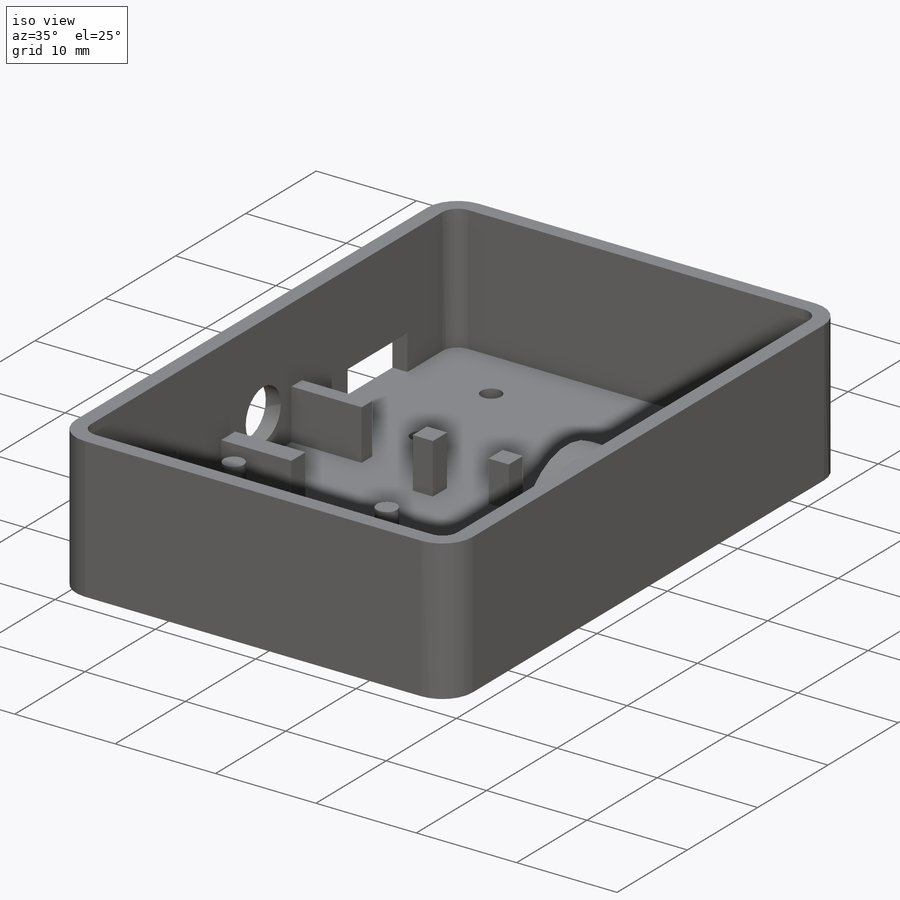
[diagram: iso view]
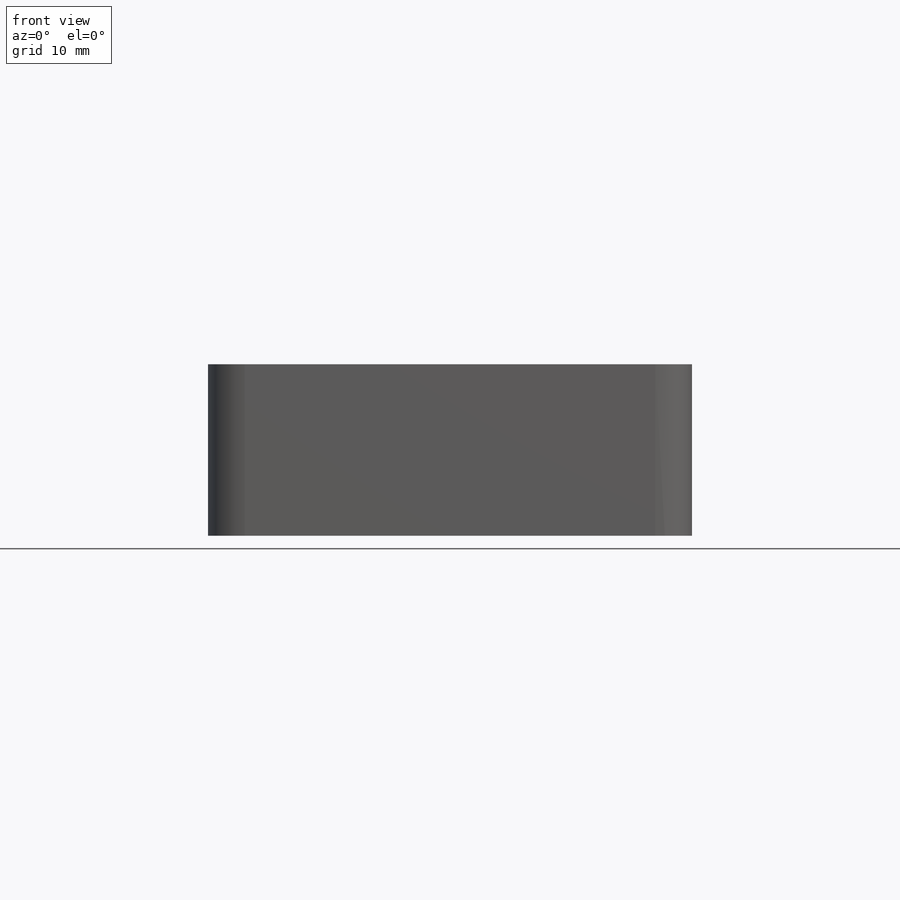
[diagram: front view]
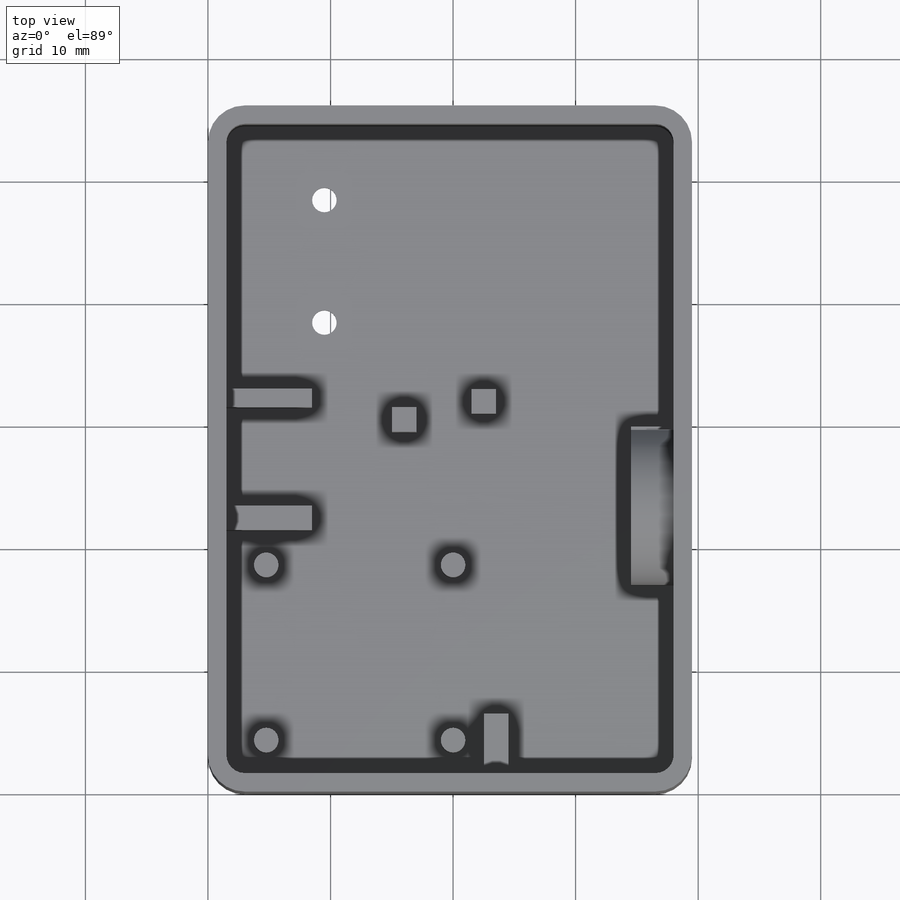
[diagram: top view]
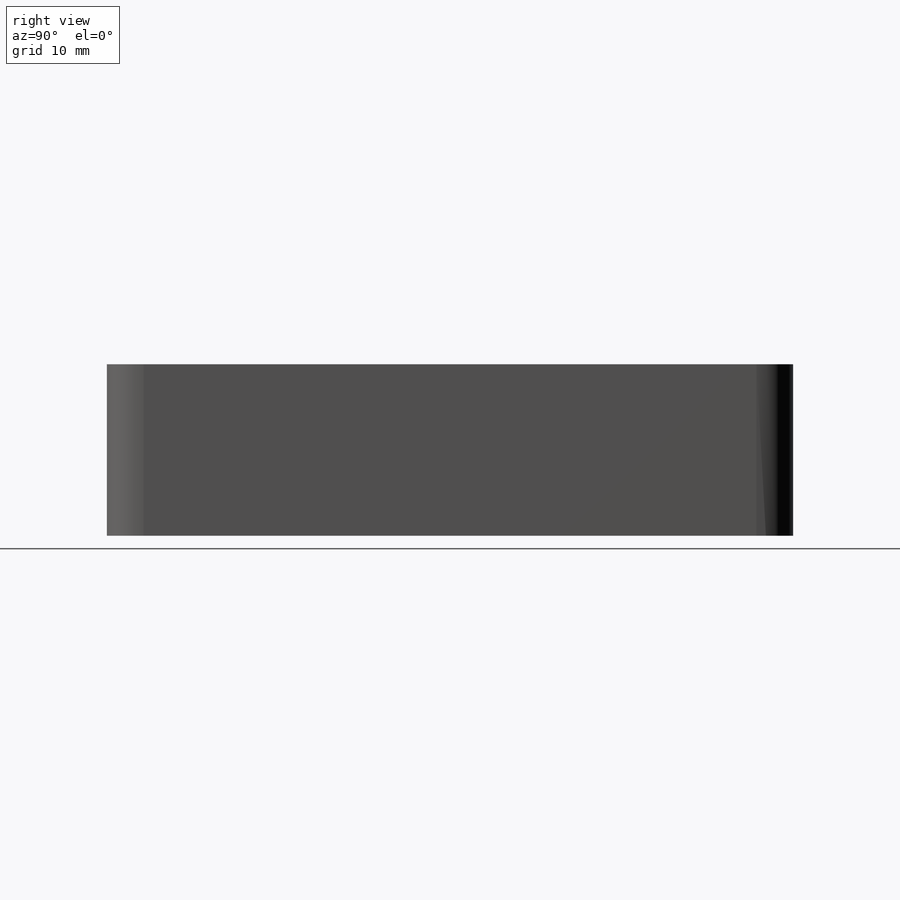
[diagram: right view]
SOLIDWORKS PART (.sldprt)
format: sldprt  version: not decoded by parser v0  size: 570,880 bytes
history: native  units: mm
features: sketch x18, extrude x10, cut_extrude x8, material x1, fillet x1, shell x1 (+13 scaffold rows collapsed)
feature tree (52):
  scaffold x13  (default folders/planes/origin — collapsed)
  material  "Material <not specified>"
  sketch  "Sketch2"  dims[D1=56.0mm D2=39.5mm]
  extrude  "Boss-Extrude1"  Depth=14mm
  fillet  "Fillet1"  Radius=3mm
  shell  "Shell1"  Thickness=1.5mm
  sketch  "Sketch3"  dims[D1=7.0mm D2=2.0mm D3=0.0mm D4=20.0mm D5=5.0mm D6=2.0mm D7=0.0mm D8=21.0mm]
  extrude  "Boss-Extrude3"  Depth=4mm
  sketch  "Sketch4"  dims[D1=2.0mm D2=2.0mm D3=20.0mm D4=21.5mm]
  extrude  "Boss-Extrude4"  Depth=4.052221mm
  sketch  "Sketch6"  dims[D1=8.0mm D2=3.5mm D3=2.0mm D4=6.0mm]
  cut_extrude  "Cut-Extrude1"  [1 undecoded]
  sketch  "Sketch7"  dims[c1.D1=4.0mm c1.D2=4.0mm c1.D3=2.0mm c1.D4=2.0mm c1.D6=2.0mm c1.D7=2.0mm c1.D8=2.0mm c1.D9=2.0mm c1.D10=2.0mm c1.D11=2.0mm c2.D1=2.85mm c2.D2=3.25mm c2.D5=3.25mm c2.D6=~3.104748mm c3.D6=90.0deg c4.D6=~3.104748mm c5.D6=90.0deg c6.D6=2.85mm c6.D8=2.5mm c6.D9=2.85mm c6.D11=2.85mm c6.D12=2.5mm]
  extrude  "Boss-Extrude5"  Depth=4mm
  sketch  "Sketch8"  dims[D1=3.5mm D2=8.5mm D3=6.5mm D4=0.0mm]
  cut_extrude  "Cut-Extrude2"  [1 undecoded]
  sketch  "Sketch12"  dims[c1.D1=13.0mm c1.D3=13.0mm c1.D2=5.1mm c2.D3=22.0mm]
  extrude  "Boss-Extrude7"  Depth=3.5mm
  sketch  "Sketch13"  dims[D1=10.3mm D2=0.0mm]
  cut_extrude  "Cut-Extrude5"  Depth=3.5mm
  sketch  "Sketch15"  dims[D1=1.3mm]
  extrude  "Boss-Extrude8"  Depth=3.5mm
  sketch  "Sketch16"  dims[D1=0.0mm D2=2.3mm]
  extrude  "Boss-Extrude9"  Depth=3.5mm
  sketch  "Sketch17"  dims[D1=1.2mm D2=0.0mm]
  extrude  "Boss-Extrude10"  Depth=3.5mm
  sketch  "Sketch18"  dims[D1=2.4mm D2=0.0mm]
  extrude  "Boss-Extrude12"  Depth=3.5mm
  sketch  "Sketch21"  dims[D1=4.0mm D2=3.0mm]
  cut_extrude  "Cut-Extrude6"  Depth=3.5mm
  sketch  "Sketch22"  dims[c1.D1=2.0mm c1.D2=2.0mm c1.D3=2.0mm c2.D2=16.0mm c2.D3=8.0mm]
  cut_extrude  "Cut-Extrude7"  [1 undecoded]
  sketch  "Sketch23"  dims[c1.D1=5.0mm c1.D2=3.0mm c1.D3=3.0mm c2.D2=4.0mm c2.D3=4.0mm]
  cut_extrude  "Cut-Extrude8"  Depth=10mm
  sketch  "Sketch25"  dims[D1=8.0mm D2=0.0mm D3=7.0mm D4=0.0mm D5=2.0mm D6=0.0mm D7=13.5mm D8=2.0mm]
  extrude  "Boss-Extrude13"  Depth=5mm
  sketch  "Sketch28"  dims[c1.D1=2.0mm c1.D2=2.0mm c2.D1=6.0mm c2.D2=8.0mm]
  cut_extrude  "Cut-Extrude10"  [1 undecoded]
  sketch  "Sketch26"  dims[D1=24.0mm D2=9.0mm D3=1.0mm D4=5.0mm]
  cut_extrude  "Cut-Extrude9"  [1 undecoded]
decode coverage: 33 of 38 modeling features carry decoded parameters
note: ~ marks probable driven/reference dimensions
note: 5 parameter values undecoded
summary: no parameter record found for 5 features
note: suppression state not decoded; provenance and decode notes live in map.json
